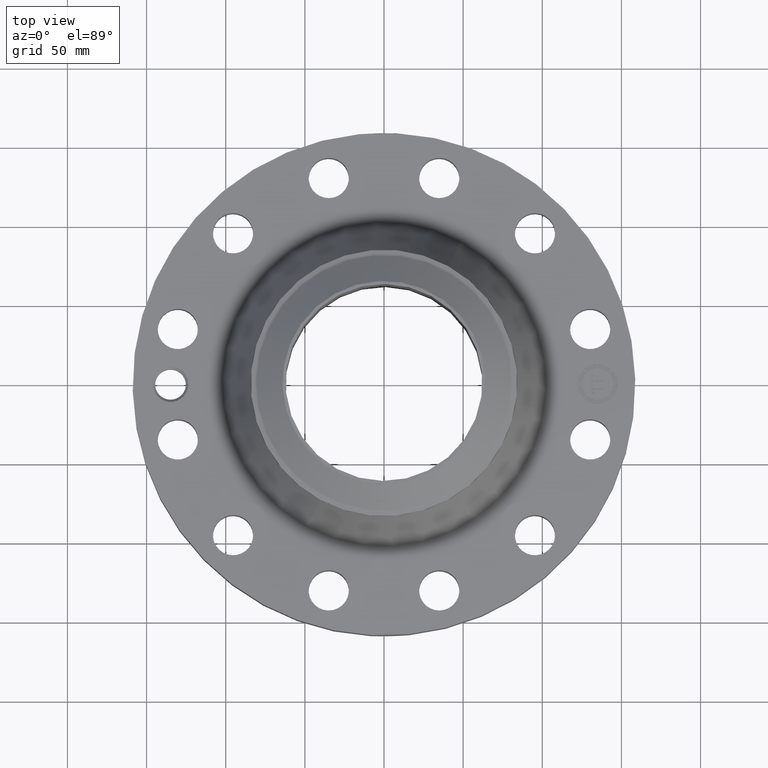
[diagram: clean part render]
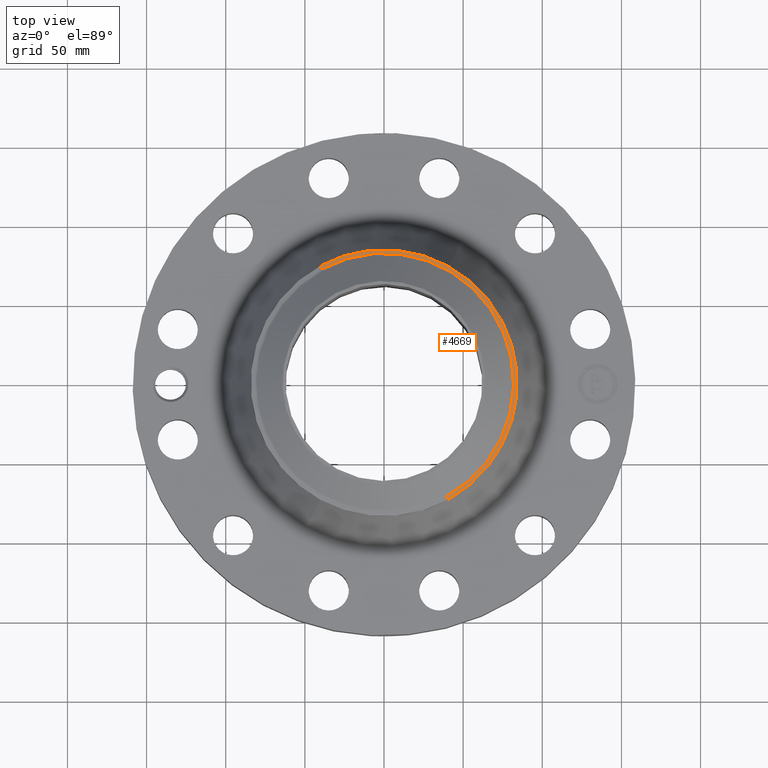
[diagram: same view with one face highlighted and labeled with its STEP entity id]
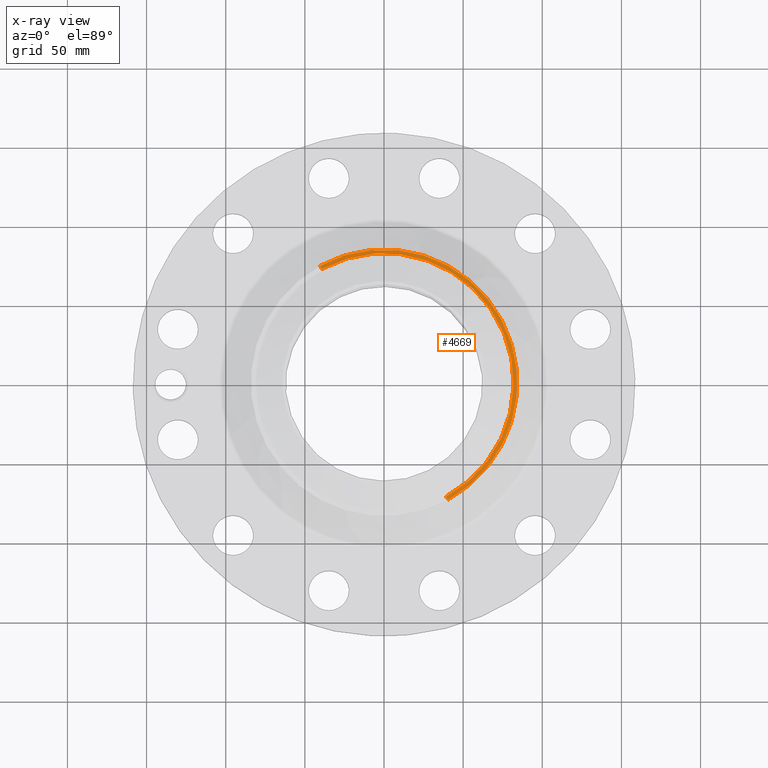
[diagram: x-ray of the same camera — body ghosted, the highlighted face saturated]
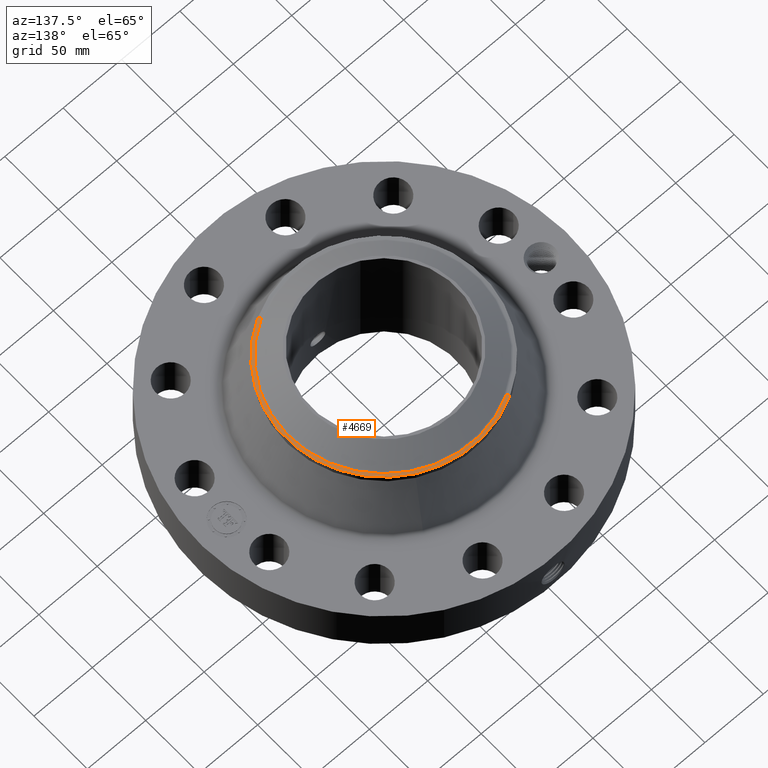
[diagram: same view with one face highlighted and labeled with its STEP entity id]
A machine part, top view. The second image highlights one B-rep face of the part: STEP entity #4669.
The next image is the same camera in x-ray: the body ghosted, the highlighted face saturated — about 0% of this face is hidden behind the body in this view.
A second angle (auxiliary view) of the same face is appended — the face is thin or edge-on in the first view.
In plain terms, the highlighted conical surface has half-angle 80 deg.
Its self-contained STEP definition (entity closure, byte-faithful):
#3475=AXIS2_PLACEMENT_3D('Circle Axis2P3D',#3473,#3474,$) ;
#3502=AXIS2_PLACEMENT_3D('Circle Axis2P3D',#3500,#3501,$) ;
#4641=AXIS2_PLACEMENT_3D('Cone Axis2P3D',#4638,#4639,#4640) ;
#4652=AXIS2_PLACEMENT_3D('Circle Axis2P3D',#4650,#4651,$) ;
#3470=CARTESIAN_POINT('Vertex',(1.58929566048,2.90918619268,3.77554549949)) ;
#3473=CARTESIAN_POINT('Axis2P3D Location',(0.,0.,3.77554549949)) ;
#3477=CARTESIAN_POINT('Vertex',(1.58929566048,-2.90918619268,3.77554549949)) ;
#3497=CARTESIAN_POINT('Vertex',(-1.58929566048,2.90918619268,3.77554549949)) ;
#3500=CARTESIAN_POINT('Axis2P3D Location',(0.,0.,3.77554549949)) ;
#4638=CARTESIAN_POINT('Axis2P3D Location',(0.,0.,3.79141601923)) ;
#4643=CARTESIAN_POINT('Line Origine',(-1.5677200274,2.86969226124,3.78348075936)) ;
#4647=CARTESIAN_POINT('Vertex',(-1.54614439432,2.8301983298,3.79141601923)) ;
#4650=CARTESIAN_POINT('Axis2P3D Location',(0.,0.,3.79141601923)) ;
#4654=CARTESIAN_POINT('Vertex',(1.54614439432,-2.8301983298,3.79141601923)) ;
#4657=CARTESIAN_POINT('Line Origine',(1.5677200274,-2.86969226124,3.78348075936)) ;
#3474=DIRECTION('Axis2P3D Direction',(0.,0.,-0.0393700787402)) ;
#3501=DIRECTION('Axis2P3D Direction',(0.,0.,-0.0393700787402)) ;
#4639=DIRECTION('Axis2P3D Direction',(-0.,-0.,-0.0393700787402)) ;
#4640=DIRECTION('Axis2P3D XDirection',(0.0188750212049,-0.0345504945626,0.)) ;
#4644=DIRECTION('Vector Direction',(-0.0185882672208,0.0340255949157,-0.00683654242783)) ;
#4651=DIRECTION('Axis2P3D Direction',(0.,0.,-0.0393700787402)) ;
#4658=DIRECTION('Vector Direction',(0.0185882672208,-0.0340255949157,-0.00683654242783)) ;
#4645=VECTOR('Line Direction',#4644,0.0393700787402) ;
#4659=VECTOR('Line Direction',#4658,0.0393700787402) ;
#4663=ORIENTED_EDGE('',*,*,#4649,.F.) ;
#4664=ORIENTED_EDGE('',*,*,#4656,.F.) ;
#4665=ORIENTED_EDGE('',*,*,#4661,.T.) ;
#4666=ORIENTED_EDGE('',*,*,#3479,.T.) ;
#4667=ORIENTED_EDGE('',*,*,#3504,.F.) ;
#4669=ADVANCED_FACE('PartBody',(#4668),#4642,.T.) ;
#3476=CIRCLE('generated circle',#3475,3.31500000001) ;
#3503=CIRCLE('generated circle',#3502,3.31500000001) ;
#4653=CIRCLE('generated circle',#4652,3.22499380994) ;
#4642=CONICAL_SURFACE('Cone',#4641,3.22499380994,1.3962634016) ;
#3479=EDGE_CURVE('',#3478,#3471,#3476,.F.) ;
#3504=EDGE_CURVE('',#3498,#3471,#3503,.T.) ;
#4649=EDGE_CURVE('',#4648,#3498,#4646,.T.) ;
#4656=EDGE_CURVE('',#4655,#4648,#4653,.F.) ;
#4661=EDGE_CURVE('',#4655,#3478,#4660,.T.) ;
#4662=EDGE_LOOP('',(#4663,#4664,#4665,#4666,#4667)) ;
#4668=FACE_OUTER_BOUND('',#4662,.T.) ;
#4646=LINE('Line',#4643,#4645) ;
#4660=LINE('Line',#4657,#4659) ;
#3471=VERTEX_POINT('',#3470) ;
#3478=VERTEX_POINT('',#3477) ;
#3498=VERTEX_POINT('',#3497) ;
#4648=VERTEX_POINT('',#4647) ;
#4655=VERTEX_POINT('',#4654) ;